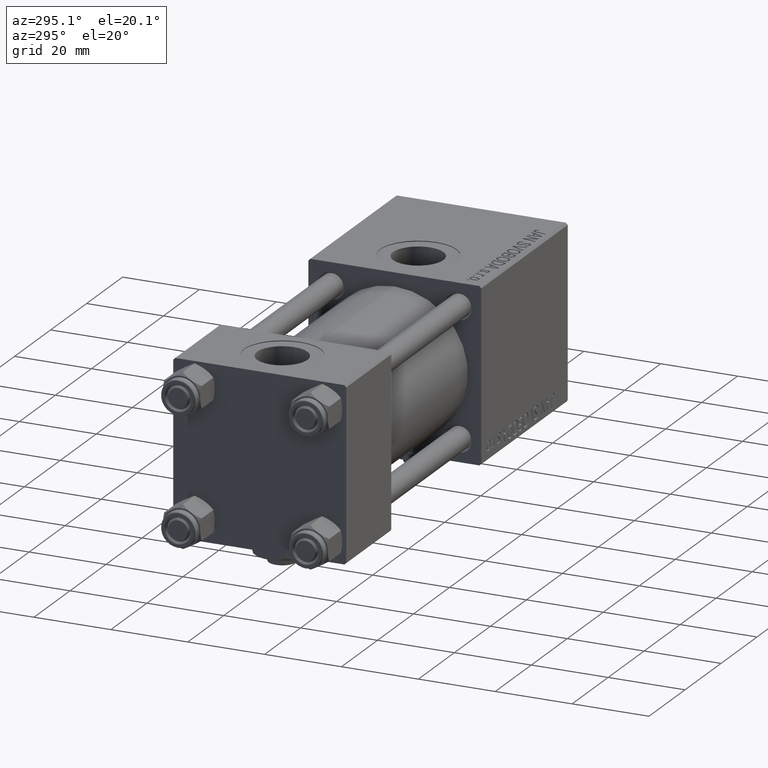
[diagram: clean part render]
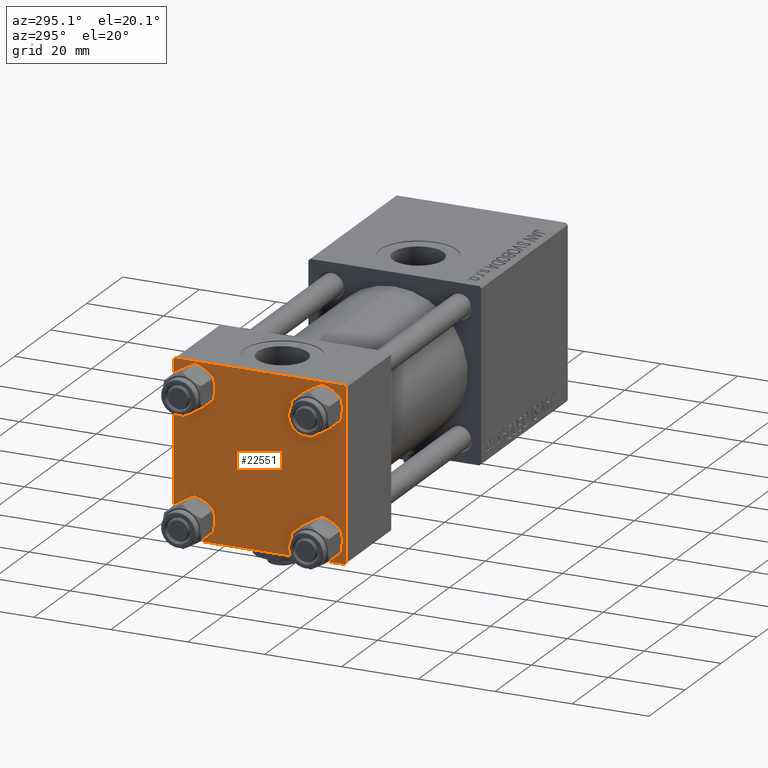
[diagram: same view with one face highlighted and labeled with its STEP entity id]
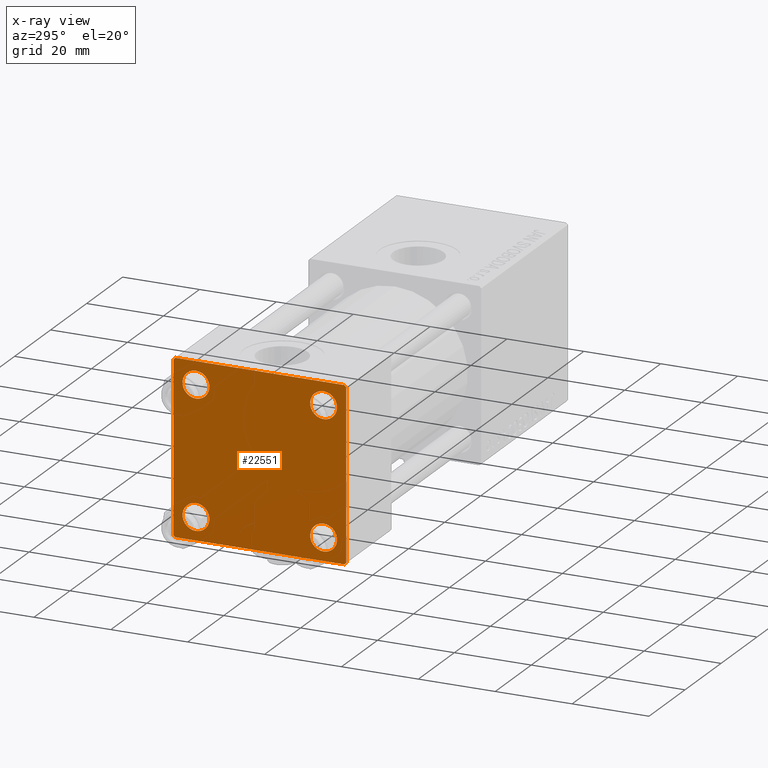
[diagram: x-ray of the same camera — body ghosted, the highlighted face saturated]
A machine part, auxiliary view. The second image highlights one B-rep face of the part: STEP entity #22551.
The next image is the same camera in x-ray: the body ghosted, the highlighted face saturated — about 0% of this face is hidden behind the body in this view.
In plain terms, the highlighted planar face has unit normal (-1, 0, 0).
Its self-contained STEP definition (entity closure, byte-faithful):
#91 = EDGE_CURVE ( 'NONE', #46742, #34676, #33695, .T. ) ;
#491 = CIRCLE ( 'NONE', #30822, 3.499999999999996003 ) ;
#666 = CARTESIAN_POINT ( 'NONE',  ( 0.000000000000000000, 16.59999999999999787, -16.60000000000000497 ) ) ;
#767 = DIRECTION ( 'NONE',  ( -0.000000000000000000, 0.7071067811865525687, 0.7071067811865425767 ) ) ;
#955 = CARTESIAN_POINT ( 'NONE',  ( 0.000000000000000000, 21.99999999999999289, 22.50000000000000355 ) ) ;
#1078 = VERTEX_POINT ( 'NONE', #32863 ) ;
#1529 = VECTOR ( 'NONE', #45943, 1000.000000000000000 ) ;
#1799 = DIRECTION ( 'NONE',  ( 0.000000000000000000, -1.000000000000000000, -7.709882115452476934E-17 ) ) ;
#1978 = CARTESIAN_POINT ( 'NONE',  ( 0.000000000000000000, -16.59999999999999076, -20.10000000000000497 ) ) ;
#2605 = CARTESIAN_POINT ( 'NONE',  ( 0.000000000000000000, -22.50000000000000000, 22.00000000000000000 ) ) ;
#2630 = ORIENTED_EDGE ( 'NONE', *, *, #16105, .F. ) ;
#2653 = ORIENTED_EDGE ( 'NONE', *, *, #32197, .T. ) ;
#2827 = AXIS2_PLACEMENT_3D ( 'NONE', #50948, #5419, #41809 ) ;
#3798 = CARTESIAN_POINT ( 'NONE',  ( 0.000000000000000000, -16.59999999999999076, -16.60000000000000853 ) ) ;
#3903 = FACE_BOUND ( 'NONE', #12873, .T. ) ;
#3952 = ORIENTED_EDGE ( 'NONE', *, *, #39963, .T. ) ;
#4168 = DIRECTION ( 'NONE',  ( -1.000000000000000000, 0.000000000000000000, -0.000000000000000000 ) ) ;
#4671 = VERTEX_POINT ( 'NONE', #2605 ) ;
#4844 = CARTESIAN_POINT ( 'NONE',  ( 0.000000000000000000, -22.25000000000014566, -22.24999999999984013 ) ) ;
#5188 = EDGE_CURVE ( 'NONE', #25848, #33399, #17135, .T. ) ;
#5419 = DIRECTION ( 'NONE',  ( 1.000000000000000000, -0.000000000000000000, 0.000000000000000000 ) ) ;
#5559 = CARTESIAN_POINT ( 'NONE',  ( 0.000000000000000000, 22.50000000000000000, -22.49999999999999645 ) ) ;
#5663 = DIRECTION ( 'NONE',  ( 0.000000000000000000, 0.000000000000000000, 1.000000000000000000 ) ) ;
#5843 = AXIS2_PLACEMENT_3D ( 'NONE', #23729, #32424, #31378 ) ;
#6101 = DIRECTION ( 'NONE',  ( 1.000000000000000000, -0.000000000000000000, 0.000000000000000000 ) ) ;
#6401 = ORIENTED_EDGE ( 'NONE', *, *, #49776, .T. ) ;
#6787 = CARTESIAN_POINT ( 'NONE',  ( 0.000000000000000000, -22.50000000000000000, 22.50000000000000000 ) ) ;
#8770 = EDGE_CURVE ( 'NONE', #24915, #39188, #45046, .T. ) ;
#8802 = LINE ( 'NONE', #4844, #40117 ) ;
#9099 = ORIENTED_EDGE ( 'NONE', *, *, #31496, .T. ) ;
#9304 = VERTEX_POINT ( 'NONE', #9429 ) ;
#9372 = VERTEX_POINT ( 'NONE', #19142 ) ;
#9429 = CARTESIAN_POINT ( 'NONE',  ( 0.000000000000000000, -22.50000000000000000, -21.99999999999997158 ) ) ;
#9540 = ORIENTED_EDGE ( 'NONE', *, *, #91, .F. ) ;
#9786 = EDGE_LOOP ( 'NONE', ( #24273, #36424, #2653, #18171, #2630, #3952, #9540, #9099 ) ) ;
#10286 = LINE ( 'NONE', #5559, #12332 ) ;
#10542 = DIRECTION ( 'NONE',  ( 0.000000000000000000, -1.000000000000000000, -2.312964634635742957E-16 ) ) ;
#12062 = VERTEX_POINT ( 'NONE', #51595 ) ;
#12259 = AXIS2_PLACEMENT_3D ( 'NONE', #666, #45259, #44994 ) ;
#12332 = VECTOR ( 'NONE', #10542, 1000.000000000000000 ) ;
#12400 = DIRECTION ( 'NONE',  ( 1.000000000000000000, -0.000000000000000000, 0.000000000000000000 ) ) ;
#12873 = EDGE_LOOP ( 'NONE', ( #41534, #19771 ) ) ;
#13712 = VERTEX_POINT ( 'NONE', #30037 ) ;
#13924 = DIRECTION ( 'NONE',  ( -0.000000000000000000, -0.7071067811865426878, -0.7071067811865524577 ) ) ;
#15044 = EDGE_LOOP ( 'NONE', ( #15517, #18683 ) ) ;
#15517 = ORIENTED_EDGE ( 'NONE', *, *, #21892, .T. ) ;
#16105 = EDGE_CURVE ( 'NONE', #4671, #9304, #23373, .T. ) ;
#16110 = VECTOR ( 'NONE', #13924, 1000.000000000000000 ) ;
#17135 = CIRCLE ( 'NONE', #2827, 3.499999999999996003 ) ;
#18043 = DIRECTION ( 'NONE',  ( 1.000000000000000000, -0.000000000000000000, 0.000000000000000000 ) ) ;
#18171 = ORIENTED_EDGE ( 'NONE', *, *, #32526, .T. ) ;
#18669 = ORIENTED_EDGE ( 'NONE', *, *, #5188, .T. ) ;
#18677 = AXIS2_PLACEMENT_3D ( 'NONE', #3798, #19877, #47071 ) ;
#18683 = ORIENTED_EDGE ( 'NONE', *, *, #22169, .T. ) ;
#18689 = VECTOR ( 'NONE', #1799, 1000.000000000000000 ) ;
#19142 = CARTESIAN_POINT ( 'NONE',  ( 0.000000000000000000, -21.99999999999997158, -22.50000000000000711 ) ) ;
#19244 = CARTESIAN_POINT ( 'NONE',  ( 0.000000000000000000, -16.59999999999999076, 20.10000000000000853 ) ) ;
#19301 = CIRCLE ( 'NONE', #5843, 3.499999999999996003 ) ;
#19771 = ORIENTED_EDGE ( 'NONE', *, *, #30740, .T. ) ;
#19856 = VECTOR ( 'NONE', #43956, 1000.000000000000114 ) ;
#19877 = DIRECTION ( 'NONE',  ( 1.000000000000000000, -0.000000000000000000, 0.000000000000000000 ) ) ;
#19986 = FACE_BOUND ( 'NONE', #15044, .T. ) ;
#20746 = CARTESIAN_POINT ( 'NONE',  ( 0.000000000000000000, 16.59999999999999787, -20.10000000000000142 ) ) ;
#20933 = DIRECTION ( 'NONE',  ( 0.000000000000000000, -0.7071067811865426878, 0.7071067811865524577 ) ) ;
#21892 = EDGE_CURVE ( 'NONE', #13712, #36750, #47965, .T. ) ;
#22169 = EDGE_CURVE ( 'NONE', #36750, #13712, #19301, .T. ) ;
#22271 = AXIS2_PLACEMENT_3D ( 'NONE', #49718, #18043, #5663 ) ;
#22551 = ADVANCED_FACE ( 'NONE', ( #23920, #40036, #3903, #19986, #52177 ), #41093, .T. ) ;
#23373 = LINE ( 'NONE', #6787, #31854 ) ;
#23729 = CARTESIAN_POINT ( 'NONE',  ( 0.000000000000000000, 16.59999999999999787, 16.60000000000000497 ) ) ;
#23920 = FACE_BOUND ( 'NONE', #27723, .T. ) ;
#24273 = ORIENTED_EDGE ( 'NONE', *, *, #39664, .T. ) ;
#24915 = VERTEX_POINT ( 'NONE', #37004 ) ;
#25848 = VERTEX_POINT ( 'NONE', #42457 ) ;
#26666 = ORIENTED_EDGE ( 'NONE', *, *, #28972, .T. ) ;
#27413 = CIRCLE ( 'NONE', #12259, 3.499999999999996003 ) ;
#27723 = EDGE_LOOP ( 'NONE', ( #44514, #26666 ) ) ;
#27846 = CARTESIAN_POINT ( 'NONE',  ( 0.000000000000000000, 22.24999999999999645, 22.24999999999999645 ) ) ;
#28972 = EDGE_CURVE ( 'NONE', #34279, #46416, #32385, .T. ) ;
#30037 = CARTESIAN_POINT ( 'NONE',  ( 0.000000000000000000, 16.59999999999999787, 20.10000000000000142 ) ) ;
#30247 = LINE ( 'NONE', #46364, #16110 ) ;
#30365 = CARTESIAN_POINT ( 'NONE',  ( 0.000000000000000000, -16.59999999999999076, 16.60000000000000853 ) ) ;
#30740 = EDGE_CURVE ( 'NONE', #39188, #24915, #27413, .T. ) ;
#30822 = AXIS2_PLACEMENT_3D ( 'NONE', #30365, #46997, #34075 ) ;
#30843 = CARTESIAN_POINT ( 'NONE',  ( 0.000000000000000000, 22.50000000000000000, 22.50000000000000355 ) ) ;
#31378 = DIRECTION ( 'NONE',  ( 0.000000000000000000, 0.000000000000000000, 1.000000000000000000 ) ) ;
#31496 = EDGE_CURVE ( 'NONE', #46742, #1078, #47916, .T. ) ;
#31854 = VECTOR ( 'NONE', #38953, 1000.000000000000000 ) ;
#31893 = EDGE_CURVE ( 'NONE', #46416, #34279, #491, .T. ) ;
#31921 = AXIS2_PLACEMENT_3D ( 'NONE', #49011, #4168, #32363 ) ;
#32197 = EDGE_CURVE ( 'NONE', #39833, #9372, #10286, .T. ) ;
#32363 = DIRECTION ( 'NONE',  ( -0.000000000000000000, 0.000000000000000000, 1.000000000000000000 ) ) ;
#32385 = CIRCLE ( 'NONE', #37485, 3.499999999999996003 ) ;
#32424 = DIRECTION ( 'NONE',  ( 1.000000000000000000, -0.000000000000000000, 0.000000000000000000 ) ) ;
#32428 = CARTESIAN_POINT ( 'NONE',  ( 0.000000000000000000, 16.59999999999999787, 16.60000000000000497 ) ) ;
#32526 = EDGE_CURVE ( 'NONE', #9372, #9304, #8802, .T. ) ;
#32863 = CARTESIAN_POINT ( 'NONE',  ( 0.000000000000000000, 22.50000000000000000, 21.99999999999999645 ) ) ;
#33399 = VERTEX_POINT ( 'NONE', #1978 ) ;
#33695 = LINE ( 'NONE', #49816, #18689 ) ;
#34075 = DIRECTION ( 'NONE',  ( 0.000000000000000000, 0.000000000000000000, 1.000000000000000000 ) ) ;
#34279 = VERTEX_POINT ( 'NONE', #41571 ) ;
#34549 = LINE ( 'NONE', #30843, #1529 ) ;
#34676 = VERTEX_POINT ( 'NONE', #52004 ) ;
#35161 = VECTOR ( 'NONE', #767, 999.9999999999998863 ) ;
#35869 = DIRECTION ( 'NONE',  ( 0.000000000000000000, 0.000000000000000000, 1.000000000000000000 ) ) ;
#36424 = ORIENTED_EDGE ( 'NONE', *, *, #51665, .T. ) ;
#36750 = VERTEX_POINT ( 'NONE', #39644 ) ;
#37004 = CARTESIAN_POINT ( 'NONE',  ( 0.000000000000000000, 16.59999999999999787, -13.10000000000000675 ) ) ;
#37485 = AXIS2_PLACEMENT_3D ( 'NONE', #41719, #6101, #45426 ) ;
#38953 = DIRECTION ( 'NONE',  ( 0.000000000000000000, 0.000000000000000000, -1.000000000000000000 ) ) ;
#39188 = VERTEX_POINT ( 'NONE', #20746 ) ;
#39528 = AXIS2_PLACEMENT_3D ( 'NONE', #32428, #12400, #35869 ) ;
#39644 = CARTESIAN_POINT ( 'NONE',  ( 0.000000000000000000, 16.59999999999999787, 13.10000000000000675 ) ) ;
#39664 = EDGE_CURVE ( 'NONE', #1078, #12062, #34549, .T. ) ;
#39833 = VERTEX_POINT ( 'NONE', #43013 ) ;
#39963 = EDGE_CURVE ( 'NONE', #4671, #34676, #49056, .T. ) ;
#40036 = FACE_BOUND ( 'NONE', #51532, .T. ) ;
#40117 = VECTOR ( 'NONE', #20933, 1000.000000000000000 ) ;
#40597 = CIRCLE ( 'NONE', #18677, 3.499999999999996003 ) ;
#41093 = PLANE ( 'NONE',  #31921 ) ;
#41534 = ORIENTED_EDGE ( 'NONE', *, *, #8770, .T. ) ;
#41571 = CARTESIAN_POINT ( 'NONE',  ( 0.000000000000000000, -16.59999999999999076, 13.10000000000001030 ) ) ;
#41719 = CARTESIAN_POINT ( 'NONE',  ( 0.000000000000000000, -16.59999999999999076, 16.60000000000000853 ) ) ;
#41809 = DIRECTION ( 'NONE',  ( 0.000000000000000000, 0.000000000000000000, 1.000000000000000000 ) ) ;
#42457 = CARTESIAN_POINT ( 'NONE',  ( 0.000000000000000000, -16.59999999999999076, -13.10000000000001030 ) ) ;
#43013 = CARTESIAN_POINT ( 'NONE',  ( 0.000000000000000000, 21.99999999999999289, -22.49999999999999645 ) ) ;
#43956 = DIRECTION ( 'NONE',  ( 0.000000000000000000, 0.7071067811865474617, -0.7071067811865474617 ) ) ;
#44514 = ORIENTED_EDGE ( 'NONE', *, *, #31893, .T. ) ;
#44994 = DIRECTION ( 'NONE',  ( 0.000000000000000000, 0.000000000000000000, 1.000000000000000000 ) ) ;
#45046 = CIRCLE ( 'NONE', #22271, 3.499999999999996003 ) ;
#45259 = DIRECTION ( 'NONE',  ( 1.000000000000000000, -0.000000000000000000, 0.000000000000000000 ) ) ;
#45426 = DIRECTION ( 'NONE',  ( 0.000000000000000000, 0.000000000000000000, 1.000000000000000000 ) ) ;
#45943 = DIRECTION ( 'NONE',  ( 0.000000000000000000, 0.000000000000000000, -1.000000000000000000 ) ) ;
#46364 = CARTESIAN_POINT ( 'NONE',  ( 0.000000000000000000, 22.25000000000014566, -22.24999999999984013 ) ) ;
#46416 = VERTEX_POINT ( 'NONE', #19244 ) ;
#46742 = VERTEX_POINT ( 'NONE', #955 ) ;
#46997 = DIRECTION ( 'NONE',  ( 1.000000000000000000, -0.000000000000000000, 0.000000000000000000 ) ) ;
#47071 = DIRECTION ( 'NONE',  ( 0.000000000000000000, 0.000000000000000000, 1.000000000000000000 ) ) ;
#47916 = LINE ( 'NONE', #27846, #19856 ) ;
#47965 = CIRCLE ( 'NONE', #39528, 3.499999999999996003 ) ;
#49011 = CARTESIAN_POINT ( 'NONE',  ( 0.000000000000000000, 0.000000000000000000, 0.000000000000000000 ) ) ;
#49056 = LINE ( 'NONE', #49315, #35161 ) ;
#49315 = CARTESIAN_POINT ( 'NONE',  ( -0.000000000000000000, -22.24999999999984013, 22.25000000000015277 ) ) ;
#49718 = CARTESIAN_POINT ( 'NONE',  ( 0.000000000000000000, 16.59999999999999787, -16.60000000000000497 ) ) ;
#49776 = EDGE_CURVE ( 'NONE', #33399, #25848, #40597, .T. ) ;
#49816 = CARTESIAN_POINT ( 'NONE',  ( 0.000000000000000000, 22.50000000000000000, 22.50000000000000355 ) ) ;
#50948 = CARTESIAN_POINT ( 'NONE',  ( 0.000000000000000000, -16.59999999999999076, -16.60000000000000853 ) ) ;
#51532 = EDGE_LOOP ( 'NONE', ( #18669, #6401 ) ) ;
#51595 = CARTESIAN_POINT ( 'NONE',  ( 0.000000000000000000, 22.50000000000000000, -21.99999999999996803 ) ) ;
#51665 = EDGE_CURVE ( 'NONE', #12062, #39833, #30247, .T. ) ;
#52004 = CARTESIAN_POINT ( 'NONE',  ( 0.000000000000000000, -21.99999999999997868, 22.50000000000000000 ) ) ;
#52177 = FACE_OUTER_BOUND ( 'NONE', #9786, .T. ) ;